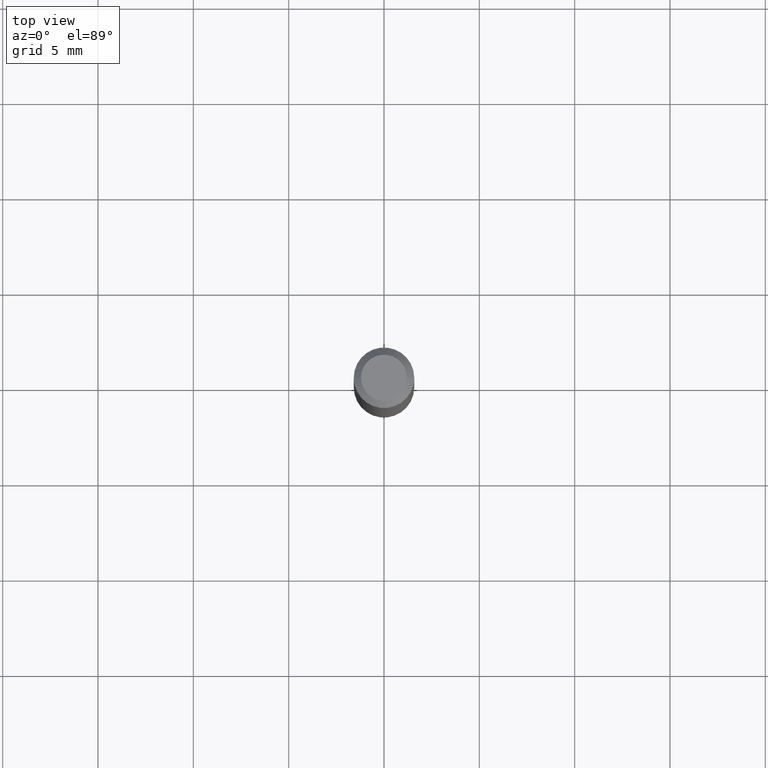
[diagram: clean part render]
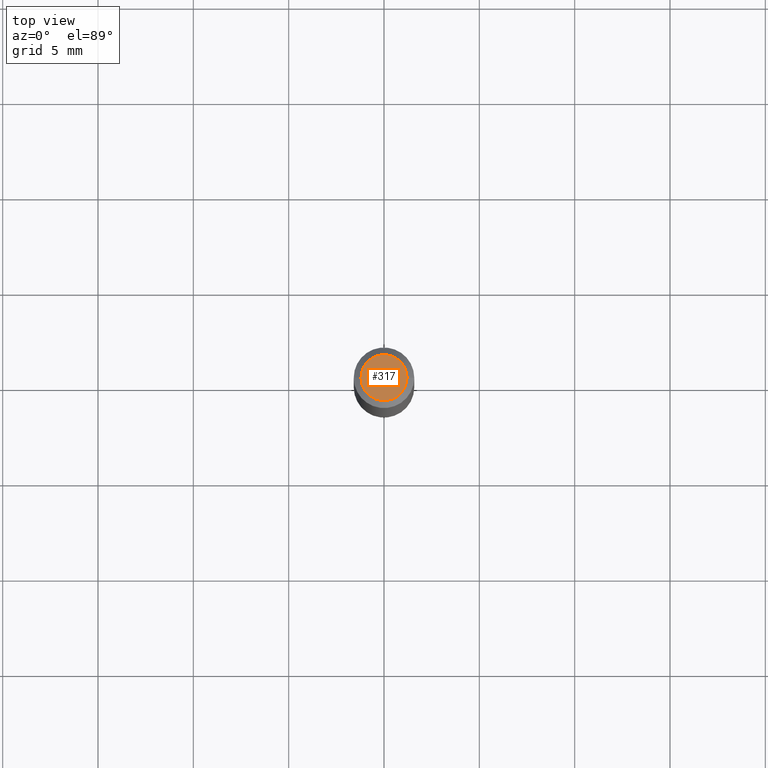
[diagram: same view with one face highlighted and labeled with its STEP entity id]
A machine part, top view. The second image highlights one B-rep face of the part: STEP entity #317.
In plain terms, the highlighted planar face has unit normal (0, -0, -1).
Its self-contained STEP definition (entity closure, byte-faithful):
#6 = DIRECTION ( 'NONE',  ( -2.445468806185136597E-29, 3.491481338843145583E-15, 1.000000000000000000 ) ) ;
#8 = CARTESIAN_POINT ( 'NONE',  ( -2.107530995056288845E-45, 3.008995707351289501E-31, 8.618106228653878303E-17 ) ) ;
#27 = DIRECTION ( 'NONE',  ( -1.000000000000000000, 6.982962677686265922E-15, -4.876176775795935793E-29 ) ) ;
#48 = AXIS2_PLACEMENT_3D ( 'NONE', #248, #434, #27 ) ;
#84 = CARTESIAN_POINT ( 'NONE',  ( -2.107530995056288845E-45, 3.008995707351289501E-31, 8.618106228653878303E-17 ) ) ;
#109 = EDGE_CURVE ( 'NONE', #395, #456, #281, .T. ) ;
#122 = AXIS2_PLACEMENT_3D ( 'NONE', #84, #412, #444 ) ;
#127 = PLANE ( 'NONE',  #48 ) ;
#141 = EDGE_CURVE ( 'NONE', #456, #395, #328, .T. ) ;
#152 = ORIENTED_EDGE ( 'NONE', *, *, #141, .T. ) ;
#217 = ORIENTED_EDGE ( 'NONE', *, *, #109, .T. ) ;
#248 = CARTESIAN_POINT ( 'NONE',  ( 3.316907271900976096E-16, 0.04749999999999999362, -1.227548324517800049E-16 ) ) ;
#281 = CIRCLE ( 'NONE', #442, 0.04749999999999999362 ) ;
#306 = CARTESIAN_POINT ( 'NONE',  ( 0.04749999999999999362, -4.035134999187576651E-16, 8.618106228654135916E-17 ) ) ;
#317 = ADVANCED_FACE ( 'NONE', ( #319 ), #127, .F. ) ;
#319 = FACE_OUTER_BOUND ( 'NONE', #422, .T. ) ;
#328 = CIRCLE ( 'NONE', #122, 0.04749999999999999362 ) ;
#347 = DIRECTION ( 'NONE',  ( 1.000000000000000000, -6.982962677686267499E-15, 4.884662768193073002E-29 ) ) ;
#395 = VERTEX_POINT ( 'NONE', #306 ) ;
#412 = DIRECTION ( 'NONE',  ( -2.445468806185136597E-29, 3.491481338843145583E-15, 1.000000000000000000 ) ) ;
#422 = EDGE_LOOP ( 'NONE', ( #152, #217 ) ) ;
#427 = CARTESIAN_POINT ( 'NONE',  ( -0.04749999999999999362, 3.578768372314211985E-16, 8.618106228653636715E-17 ) ) ;
#434 = DIRECTION ( 'NONE',  ( 2.438088387897960049E-29, -3.491481338843145188E-15, -1.000000000000000000 ) ) ;
#442 = AXIS2_PLACEMENT_3D ( 'NONE', #8, #6, #347 ) ;
#444 = DIRECTION ( 'NONE',  ( 1.000000000000000000, -6.982962677686267499E-15, 4.884662768193073002E-29 ) ) ;
#456 = VERTEX_POINT ( 'NONE', #427 ) ;